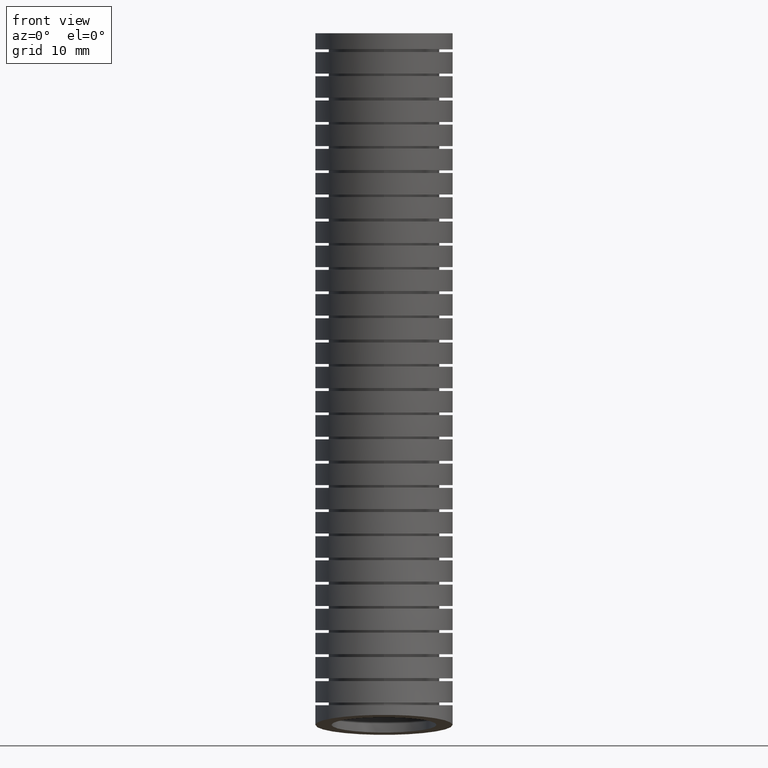
[diagram: clean part render]
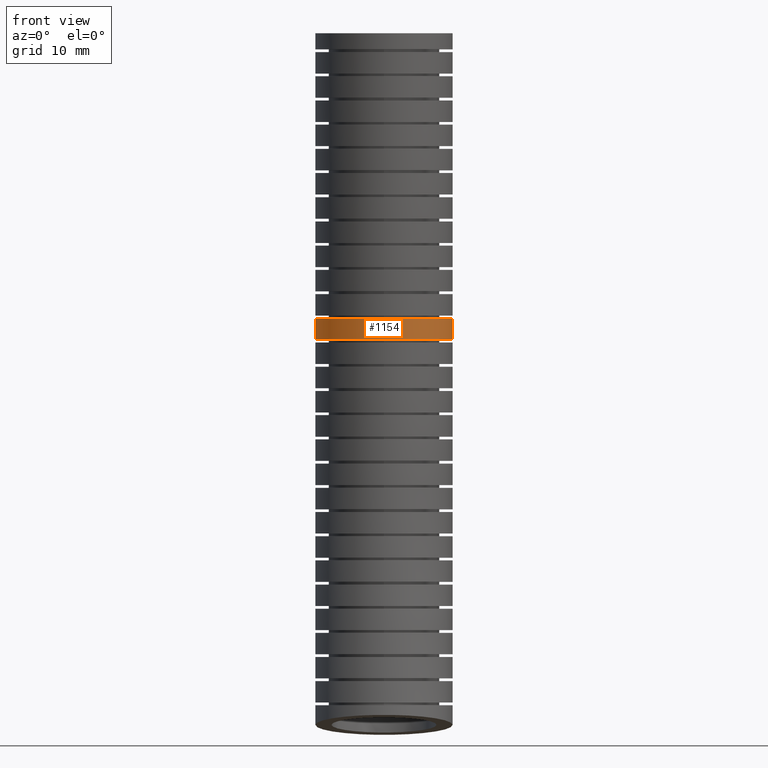
[diagram: same view with one face highlighted and labeled with its STEP entity id]
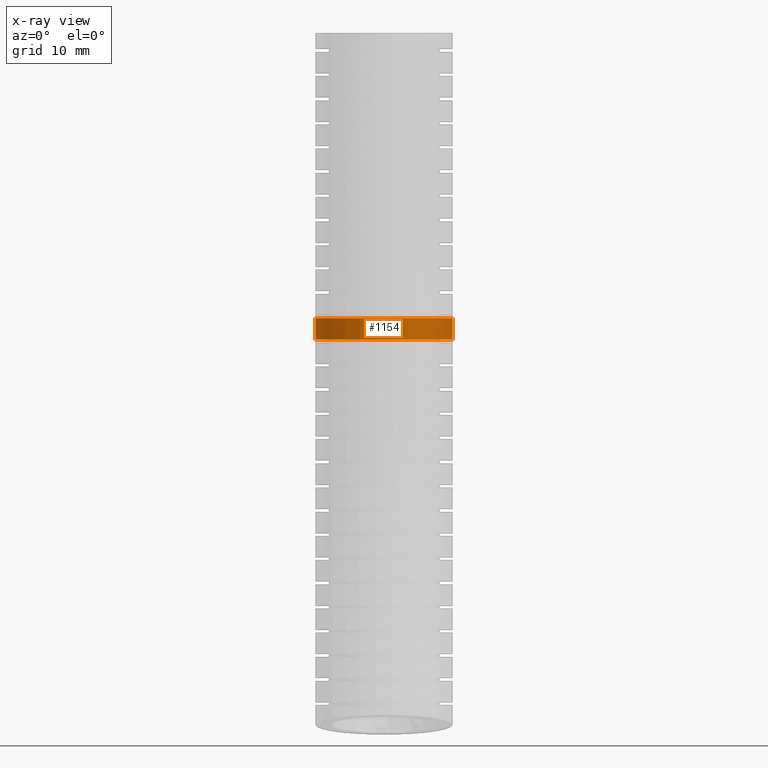
[diagram: x-ray of the same camera — body ghosted, the highlighted face saturated]
A machine part, front view. The second image highlights one B-rep face of the part: STEP entity #1154.
The next image is the same camera in x-ray: the body ghosted, the highlighted face saturated — about 0% of this face is hidden behind the body in this view.
In plain terms, the highlighted face is a freeform B-spline surface patch.
Its self-contained STEP definition (entity closure, byte-faithful):
#53 = EDGE_CURVE ( 'NONE', #1158, #1234, #2148, .T. ) ;
#342 = ORIENTED_EDGE ( 'NONE', *, *, #53, .F. ) ;
#1154 = ADVANCED_FACE ( 'NONE', ( #5274 ), #5361, .T. ) ;
#1155 = EDGE_LOOP ( 'NONE', ( #1156, #1160, #1163, #342 ) ) ;
#1156 = ORIENTED_EDGE ( 'NONE', *, *, #1157, .T. ) ;
#1157 = EDGE_CURVE ( 'NONE', #1158, #1159, #5359, .T. ) ;
#1158 = VERTEX_POINT ( 'NONE', #5319 ) ;
#1159 = VERTEX_POINT ( 'NONE', #5360 ) ;
#1160 = ORIENTED_EDGE ( 'NONE', *, *, #1161, .T. ) ;
#1161 = EDGE_CURVE ( 'NONE', #1159, #1162, #5293, .T. ) ;
#1162 = VERTEX_POINT ( 'NONE', #5292 ) ;
#1163 = ORIENTED_EDGE ( 'NONE', *, *, #1233, .T. ) ;
#1233 = EDGE_CURVE ( 'NONE', #1162, #1234, #5805, .T. ) ;
#1234 = VERTEX_POINT ( 'NONE', #5806 ) ;
#2140 = CARTESIAN_POINT ( 'NONE',  ( 0.2550000000000000600, 0.04051910040701137100, -1.139285206802340700 ) ) ;
#2141 = CARTESIAN_POINT ( 'NONE',  ( 0.2550000000000000600, 0.04022377987686701100, -1.112623963303655400 ) ) ;
#2142 = CARTESIAN_POINT ( 'NONE',  ( 0.2550000000000000600, 0.03985954388520000100, -1.085960048142794700 ) ) ;
#2143 = CARTESIAN_POINT ( 'NONE',  ( 0.2550000000000000000, 0.03943123525327440300, -1.059293649062639000 ) ) ;
#2148 = B_SPLINE_CURVE_WITH_KNOTS ( 'NONE', 3,
 ( #2143, #2142, #2141, #2140 ),
 .UNSPECIFIED., .F., .F.,
 ( 4, 4 ),
 ( 0.4113955442702315100, 0.4424901826397669700 ),
 .UNSPECIFIED. ) ;
#5274 = FACE_OUTER_BOUND ( 'NONE', #1155, .T. ) ;
#5288 = CARTESIAN_POINT ( 'NONE',  ( -0.2550000000000000600, 0.04051910041126190200, -1.139285206994206100 ) ) ;
#5289 = CARTESIAN_POINT ( 'NONE',  ( -0.2550000000000000600, 0.04022377987932290000, -1.112623963495526800 ) ) ;
#5290 = CARTESIAN_POINT ( 'NONE',  ( -0.2550000000000000600, 0.03985954388797444800, -1.085960048334648300 ) ) ;
#5291 = CARTESIAN_POINT ( 'NONE',  ( -0.2550000000000000600, 0.03943123525943528100, -1.059293649254424900 ) ) ;
#5292 = CARTESIAN_POINT ( 'NONE',  ( -0.2550000000000000600, 0.04051910041126190200, -1.139285206994206100 ) ) ;
#5293 = B_SPLINE_CURVE_WITH_KNOTS ( 'NONE', 3,
 ( #5291, #5290, #5289, #5288 ),
 .UNSPECIFIED., .F., .F.,
 ( 4, 4 ),
 ( 0.4113955443447953600, 0.4424901827143659600 ),
 .UNSPECIFIED. ) ;
#5319 = CARTESIAN_POINT ( 'NONE',  ( 0.2550000000000000000, 0.03943123525327440300, -1.059293649062639000 ) ) ;
#5320 = CARTESIAN_POINT ( 'NONE',  ( 0.2550000000000000000, -0.03000000000000002700, -2.569999999999999800 ) ) ;
#5321 = CARTESIAN_POINT ( 'NONE',  ( 0.2550000000000000000, -0.01126751581493337800, -2.380080086044865000 ) ) ;
#5322 = CARTESIAN_POINT ( 'NONE',  ( 0.2550000000000000000, 0.02578591590436005500, -2.004412636156899000 ) ) ;
#5323 = CARTESIAN_POINT ( 'NONE',  ( 0.2550000000000001700, 0.05488873695197821200, -1.148486533150796300 ) ) ;
#5324 = CARTESIAN_POINT ( 'NONE',  ( 0.2550000000000000000, 0.02298048079048191000, -0.4808413197099051800 ) ) ;
#5325 = CARTESIAN_POINT ( 'NONE',  ( 0.2550000000000000000, 0.0000000000000000000, 0.0000000000000000000 ) ) ;
#5326 = CARTESIAN_POINT ( 'NONE',  ( 0.2549999999999999500, 0.4745687628602173200, -2.644231822998695900 ) ) ;
#5327 = CARTESIAN_POINT ( 'NONE',  ( 0.2549999999999998900, 0.4942108475508936700, -2.446087519929936800 ) ) ;
#5328 = CARTESIAN_POINT ( 'NONE',  ( 0.2550000000000000000, 0.5330634971365140200, -2.054151974607116000 ) ) ;
#5329 = CARTESIAN_POINT ( 'NONE',  ( 0.2550000000000000000, 0.5652806686658973200, -1.166484199753219600 ) ) ;
#5330 = CARTESIAN_POINT ( 'NONE',  ( 0.2550000000000000000, 0.5331445723641462500, -0.4883764727230331400 ) ) ;
#5331 = CARTESIAN_POINT ( 'NONE',  ( 0.2550000000000000000, 0.5100000000000000100, 0.0000000000000000000 ) ) ;
#5332 = CARTESIAN_POINT ( 'NONE',  ( -0.2549999999999998900, 0.4745687628602173200, -2.644231822998695900 ) ) ;
#5333 = CARTESIAN_POINT ( 'NONE',  ( -0.2549999999999998400, 0.4942108475508936700, -2.446087519929936800 ) ) ;
#5334 = CARTESIAN_POINT ( 'NONE',  ( -0.2550000000000000000, 0.5330634971365140200, -2.054151974607116000 ) ) ;
#5335 = CARTESIAN_POINT ( 'NONE',  ( -0.2550000000000000000, 0.5652806686658973200, -1.166484199753219600 ) ) ;
#5336 = CARTESIAN_POINT ( 'NONE',  ( -0.2549999999999999500, 0.5331445723641462500, -0.4883764727230331400 ) ) ;
#5337 = CARTESIAN_POINT ( 'NONE',  ( -0.2549999999999999500, 0.5100000000000000100, 0.0000000000000000000 ) ) ;
#5356 = CARTESIAN_POINT ( 'NONE',  ( 0.2533231970305698800, 0.005794896162582858500, -1.059293649254424300 ) ) ;
#5357 = CARTESIAN_POINT ( 'NONE',  ( 0.2549999999999999500, 0.02259431509516705500, -1.059293649062638800 ) ) ;
#5358 = CARTESIAN_POINT ( 'NONE',  ( 0.2550000000000000000, 0.03943123525327440300, -1.059293649062639000 ) ) ;
#5359 = B_SPLINE_CURVE_WITH_KNOTS ( 'NONE', 3,
 ( #5358, #5357, #5356, #5440, #5439, #5438, #5437, #5436, #5435, #5434, #5433, #5432, #5431, #5430, #5429, #5428, #5427, #5426, #5425, #5424, #5423, #5422, #5421, #5420, #5419, #5418, #5417, #5416, #5415, #5414, #5413, #5412, #5411, #5410, #5409, #5408, #5407, #5406, #5405, #5404, #5403 ),
 .UNSPECIFIED., .F., .F.,
 ( 4, 2, 2, 2, 2, 2, 2, 2, 2, 2, 2, 2, 2, 2, 2, 1, 2, 2, 2, 2, 4 ),
 ( 0.0000000000000000000, 0.001278540503015179500, 0.002557081006030359000, 0.003835621509045538400, 0.005114162012060718100, 0.005753432263568308000, 0.006392702515075897800, 0.007671243018091076700, 0.008949783521106256500, 0.009589053772613846300, 0.01022832402412143600, 0.01150686452713661600, 0.01278540503015179600, 0.01406394553316697500, 0.01470321578467456500, 0.01534248603618215300, 0.01598175628768974300, 0.01662102653919733300, 0.01789956704221251300, 0.01917810754522769300, 0.02045664804824287200 ),
 .UNSPECIFIED. ) ;
#5360 = CARTESIAN_POINT ( 'NONE',  ( -0.2550000000000000600, 0.03943123525943528100, -1.059293649254424900 ) ) ;
#5361 =( BOUNDED_SURFACE ( )  B_SPLINE_SURFACE ( 3, 3, ( 
 ( #5402, #5401, #5400, #5399, #5398, #5397 ),
 ( #5396, #5395, #5394, #5393, #5392, #5391 ),
 ( #5390, #5389, #5388, #5387, #5386, #5385 ),
 ( #5384, #5383, #5382, #5381, #5380, #5379 ),
 ( #5337, #5336, #5335, #5334, #5333, #5332 ),
 ( #5331, #5330, #5329, #5328, #5327, #5326 ),
 ( #5325, #5324, #5323, #5322, #5321, #5320 ) ),
 .UNSPECIFIED., .F., .F., .T. ) 
 B_SPLINE_SURFACE_WITH_KNOTS ( ( 4, 3, 4 ),
 ( 4, 1, 1, 4 ),
 ( 0.0000000000000000000, 0.5000000000000000000, 1.000000000000000000 ),
 ( 0.0000000000000000000, 0.5599999999999998300, 0.7775565539011162200, 1.000000000000000000 ),
 .UNSPECIFIED. ) 
 GEOMETRIC_REPRESENTATION_ITEM ( )  RATIONAL_B_SPLINE_SURFACE ( (
 ( 1.000000000000000000, 1.000000000000000000, 0.9999999999999998900, 1.000000000000000000, 1.000000000000000000, 1.000000000000000000),
 ( 0.3333333333333333100, 0.3333333333333333100, 0.3333333333333332600, 0.3333333333333332600, 0.3333333333333333700, 0.3333333333333333100),
 ( 0.3333333333333333100, 0.3333333333333333100, 0.3333333333333332600, 0.3333333333333332600, 0.3333333333333333700, 0.3333333333333333100),
 ( 1.000000000000000000, 1.000000000000000000, 0.9999999999999998900, 1.000000000000000000, 1.000000000000000000, 1.000000000000000000),
 ( 0.3333333333333333100, 0.3333333333333333100, 0.3333333333333332600, 0.3333333333333332600, 0.3333333333333333700, 0.3333333333333333100),
 ( 0.3333333333333333100, 0.3333333333333333100, 0.3333333333333332600, 0.3333333333333332600, 0.3333333333333333700, 0.3333333333333333100),
 ( 1.000000000000000000, 1.000000000000000000, 0.9999999999999998900, 1.000000000000000000, 1.000000000000000000, 1.000000000000000000) ) ) 
 REPRESENTATION_ITEM ( '' )  SURFACE ( )  );
#5379 = CARTESIAN_POINT ( 'NONE',  ( -0.2550000000000000000, -0.02999999999999999500, -2.569999999999999800 ) ) ;
#5380 = CARTESIAN_POINT ( 'NONE',  ( -0.2550000000000000000, -0.01126751581493334900, -2.380080086044865000 ) ) ;
#5381 = CARTESIAN_POINT ( 'NONE',  ( -0.2550000000000000000, 0.02578591590436009300, -2.004412636156899000 ) ) ;
#5382 = CARTESIAN_POINT ( 'NONE',  ( -0.2550000000000001700, 0.05488873695197826800, -1.148486533150796300 ) ) ;
#5383 = CARTESIAN_POINT ( 'NONE',  ( -0.2550000000000000000, 0.02298048079048194800, -0.4808413197099051800 ) ) ;
#5384 = CARTESIAN_POINT ( 'NONE',  ( -0.2550000000000000000, 3.122849337825751200E-017, 0.0000000000000000000 ) ) ;
#5385 = CARTESIAN_POINT ( 'NONE',  ( -0.2550000000000000000, -0.5345687628602172600, -2.495768177001302000 ) ) ;
#5386 = CARTESIAN_POINT ( 'NONE',  ( -0.2549999999999999500, -0.5167458791807605400, -2.314072652159792300 ) ) ;
#5387 = CARTESIAN_POINT ( 'NONE',  ( -0.2550000000000001200, -0.4814916653277938100, -1.954673297706683400 ) ) ;
#5388 = CARTESIAN_POINT ( 'NONE',  ( -0.2550000000000001200, -0.4555031947619409000, -1.130488866548372800 ) ) ;
#5389 = CARTESIAN_POINT ( 'NONE',  ( -0.2550000000000000600, -0.4871836107831824000, -0.4733061666967772200 ) ) ;
#5390 = CARTESIAN_POINT ( 'NONE',  ( -0.2550000000000000600, -0.5100000000000000100, 0.0000000000000000000 ) ) ;
#5391 = CARTESIAN_POINT ( 'NONE',  ( 0.2549999999999999500, -0.5345687628602172600, -2.495768177001302000 ) ) ;
#5392 = CARTESIAN_POINT ( 'NONE',  ( 0.2549999999999998900, -0.5167458791807605400, -2.314072652159792300 ) ) ;
#5393 = CARTESIAN_POINT ( 'NONE',  ( 0.2550000000000000000, -0.4814916653277938100, -1.954673297706683400 ) ) ;
#5394 = CARTESIAN_POINT ( 'NONE',  ( 0.2550000000000000000, -0.4555031947619409000, -1.130488866548372800 ) ) ;
#5395 = CARTESIAN_POINT ( 'NONE',  ( 0.2550000000000000000, -0.4871836107831824000, -0.4733061666967772200 ) ) ;
#5396 = CARTESIAN_POINT ( 'NONE',  ( 0.2550000000000000000, -0.5100000000000000100, 0.0000000000000000000 ) ) ;
#5397 = CARTESIAN_POINT ( 'NONE',  ( 0.2550000000000000000, -0.03000000000000002700, -2.569999999999999800 ) ) ;
#5398 = CARTESIAN_POINT ( 'NONE',  ( 0.2550000000000000000, -0.01126751581493337800, -2.380080086044865000 ) ) ;
#5399 = CARTESIAN_POINT ( 'NONE',  ( 0.2550000000000000000, 0.02578591590436005500, -2.004412636156899000 ) ) ;
#5400 = CARTESIAN_POINT ( 'NONE',  ( 0.2550000000000001700, 0.05488873695197821200, -1.148486533150796300 ) ) ;
#5401 = CARTESIAN_POINT ( 'NONE',  ( 0.2550000000000000000, 0.02298048079048191000, -0.4808413197099051800 ) ) ;
#5402 = CARTESIAN_POINT ( 'NONE',  ( 0.2550000000000000000, 0.0000000000000000000, 0.0000000000000000000 ) ) ;
#5403 = CARTESIAN_POINT ( 'NONE',  ( -0.2550000000000000600, 0.03943123525943528100, -1.059293649254424900 ) ) ;
#5404 = CARTESIAN_POINT ( 'NONE',  ( -0.2550000000000000600, 0.02273679934529793500, -1.059293649254424700 ) ) ;
#5405 = CARTESIAN_POINT ( 'NONE',  ( -0.2533730616436006300, 0.006218271911818847000, -1.059293649254424000 ) ) ;
#5406 = CARTESIAN_POINT ( 'NONE',  ( -0.2468842000522564200, -0.02646900862429375400, -1.059293649254424300 ) ) ;
#5407 = CARTESIAN_POINT ( 'NONE',  ( -0.2419564086012829200, -0.04270004527580136000, -1.059293649254424900 ) ) ;
#5408 = CARTESIAN_POINT ( 'NONE',  ( -0.2292257166780676000, -0.07340583867163323600, -1.059293649254424700 ) ) ;
#5409 = CARTESIAN_POINT ( 'NONE',  ( -0.2214038879308409800, -0.08806354059971802100, -1.059293649254424300 ) ) ;
#5410 = CARTESIAN_POINT ( 'NONE',  ( -0.2074276951487280300, -0.1089792710377113500, -1.059293649254424300 ) ) ;
#5411 = CARTESIAN_POINT ( 'NONE',  ( -0.2024020567672960000, -0.1157474479196851500, -1.059293649254424700 ) ) ;
#5412 = CARTESIAN_POINT ( 'NONE',  ( -0.1918179747839011100, -0.1286300617273136400, -1.059293649254424700 ) ) ;
#5413 = CARTESIAN_POINT ( 'NONE',  ( -0.1806526929197404000, -0.1409342210356001300, -1.059293649254424000 ) ) ;
#5414 = CARTESIAN_POINT ( 'NONE',  ( -0.1683410770472716600, -0.1520974612095253300, -1.059293649254424500 ) ) ;
#5415 = CARTESIAN_POINT ( 'NONE',  ( -0.1554477257561072700, -0.1626817138758695200, -1.059293649254424300 ) ) ;
#5416 = CARTESIAN_POINT ( 'NONE',  ( -0.1486703320991409600, -0.1677095082561235500, -1.059293649254424900 ) ) ;
#5417 = CARTESIAN_POINT ( 'NONE',  ( -0.1277652766336997100, -0.1816682527304555600, -1.059293649254424900 ) ) ;
#5418 = CARTESIAN_POINT ( 'NONE',  ( -0.1131098989645655400, -0.1894868652540006000, -1.059293649254425600 ) ) ;
#5419 = CARTESIAN_POINT ( 'NONE',  ( -0.08239659426689546800, -0.2022216681272788800, -1.059293649254425400 ) ) ;
#5420 = CARTESIAN_POINT ( 'NONE',  ( -0.06616232601308431900, -0.2071534834215998700, -1.059293649254424900 ) ) ;
#5421 = CARTESIAN_POINT ( 'NONE',  ( -0.03349131998676090100, -0.2136562574134459900, -1.059293649254424900 ) ) ;
#5422 = CARTESIAN_POINT ( 'NONE',  ( -0.01697353750178483600, -0.2152973864898584900, -1.059293649254424700 ) ) ;
#5423 = CARTESIAN_POINT ( 'NONE',  ( 0.008078775466248924700, -0.2153240814420807900, -1.059293649254424900 ) ) ;
#5424 = CARTESIAN_POINT ( 'NONE',  ( 0.01651953401247357000, -0.2149175805271991400, -1.059293649254424900 ) ) ;
#5425 = CARTESIAN_POINT ( 'NONE',  ( 0.03317268920027512100, -0.2132888630937147300, -1.059293649254424900 ) ) ;
#5426 = CARTESIAN_POINT ( 'NONE',  ( 0.04140718695574591900, -0.2120712378769583100, -1.059293649254425400 ) ) ;
#5427 = CARTESIAN_POINT ( 'NONE',  ( 0.06584069422728551500, -0.2072359502126764100, -1.059293649254425400 ) ) ;
#5428 = CARTESIAN_POINT ( 'NONE',  ( 0.08177236735811303800, -0.2024474797984749700, -1.059293649254425200 ) ) ;
#5429 = CARTESIAN_POINT ( 'NONE',  ( 0.1128911496635884600, -0.1896096980979800300, -1.059293649254424900 ) ) ;
#5430 = CARTESIAN_POINT ( 'NONE',  ( 0.1275772336206182400, -0.1817649650723920900, -1.059293649254424700 ) ) ;
#5431 = CARTESIAN_POINT ( 'NONE',  ( 0.1483094545574877900, -0.1679644279328786900, -1.059293649254424700 ) ) ;
#5432 = CARTESIAN_POINT ( 'NONE',  ( 0.1550047905021148000, -0.1630218521035594900, -1.059293649254424700 ) ) ;
#5433 = CARTESIAN_POINT ( 'NONE',  ( 0.1679549363400194000, -0.1524364606848574700, -1.059293649254424700 ) ) ;
#5434 = CARTESIAN_POINT ( 'NONE',  ( 0.1742270292202120500, -0.1467706763645258200, -1.059293649254424700 ) ) ;
#5435 = CARTESIAN_POINT ( 'NONE',  ( 0.1919739060281820400, -0.1290748819466428800, -1.059293649254424500 ) ) ;
#5436 = CARTESIAN_POINT ( 'NONE',  ( 0.2025235185573504600, -0.1162577224107260200, -1.059293649254424700 ) ) ;
#5437 = CARTESIAN_POINT ( 'NONE',  ( 0.2210832171900184400, -0.08860237846393484400, -1.059293649254424500 ) ) ;
#5438 = CARTESIAN_POINT ( 'NONE',  ( 0.2291059839458280400, -0.07364927351942060500, -1.059293649254424900 ) ) ;
#5439 = CARTESIAN_POINT ( 'NONE',  ( 0.2418737528233392000, -0.04294404724299163300, -1.059293649254424700 ) ) ;
#5440 = CARTESIAN_POINT ( 'NONE',  ( 0.2467315833719421500, -0.02706022168021976800, -1.059293649254424000 ) ) ;
#5718 = CARTESIAN_POINT ( 'NONE',  ( -0.2291052479850598800, -0.07258519511304779800, -1.139285206994205400 ) ) ;
#5719 = CARTESIAN_POINT ( 'NONE',  ( -0.2420037891191959000, -0.04150937517680860400, -1.139285206994205700 ) ) ;
#5720 = CARTESIAN_POINT ( 'NONE',  ( -0.2468234361977103600, -0.02559029132689693800, -1.139285206994204800 ) ) ;
#5721 = CARTESIAN_POINT ( 'NONE',  ( -0.2517006371339901000, -0.001161462531630207800, -1.139285206994204500 ) ) ;
#5722 = CARTESIAN_POINT ( 'NONE',  ( -0.2529314312116676700, 0.007073857964126574800, -1.139285206994205700 ) ) ;
#5723 = CARTESIAN_POINT ( 'NONE',  ( -0.2545837475929568800, 0.02373379008068403000, -1.139285206994205400 ) ) ;
#5724 = CARTESIAN_POINT ( 'NONE',  ( -0.2550000000000000600, 0.03217168390744318300, -1.139285206994206100 ) ) ;
#5725 = CARTESIAN_POINT ( 'NONE',  ( -0.2550000000000000600, 0.04051910041126190200, -1.139285206994206100 ) ) ;
#5753 = CARTESIAN_POINT ( 'NONE',  ( 0.03328065314276863800, -0.2125888196849475800, -1.139285206994205400 ) ) ;
#5754 = CARTESIAN_POINT ( 'NONE',  ( 0.01659846631326115600, -0.2142116808881193200, -1.139285206994205900 ) ) ;
#5755 = CARTESIAN_POINT ( 'NONE',  ( -0.008299345304568068300, -0.2142116735960222500, -1.139285206994205900 ) ) ;
#5756 = CARTESIAN_POINT ( 'NONE',  ( -0.01660162317109719800, -0.2138079271356461400, -1.139285206994206100 ) ) ;
#5757 = CARTESIAN_POINT ( 'NONE',  ( -0.03321229406180898500, -0.2121794532623907900, -1.139285206994206300 ) ) ;
#5758 = CARTESIAN_POINT ( 'NONE',  ( -0.04156661675902180400, -0.2109439053024656500, -1.139285206994205400 ) ) ;
#5759 = CARTESIAN_POINT ( 'NONE',  ( -0.06620517044972305800, -0.2060450568390346000, -1.139285206994205900 ) ) ;
#5760 = CARTESIAN_POINT ( 'NONE',  ( -0.08209764625800847200, -0.2012208059654153600, -1.139285206994205700 ) ) ;
#5761 = CARTESIAN_POINT ( 'NONE',  ( -0.1128379196144504600, -0.1885192378667290000, -1.139285206994205700 ) ) ;
#5776 = CARTESIAN_POINT ( 'NONE',  ( 0.2073568491450066000, -0.1079766712371886800, -1.139285206994206300 ) ) ;
#5777 = CARTESIAN_POINT ( 'NONE',  ( 0.2023914199123597000, -0.1146662122786022700, -1.139285206994205400 ) ) ;
#5778 = CARTESIAN_POINT ( 'NONE',  ( 0.1917513899974707400, -0.1276098128667513300, -1.139285206994205400 ) ) ;
#5779 = CARTESIAN_POINT ( 'NONE',  ( 0.1860748285498402800, -0.1338567727875681600, -1.139285206994205400 ) ) ;
#5780 = CARTESIAN_POINT ( 'NONE',  ( 0.1683554210797803300, -0.1515290962799576700, -1.139285206994205400 ) ) ;
#5781 = CARTESIAN_POINT ( 'NONE',  ( 0.1555138736995587100, -0.1620448398952162300, -1.139285206994205400 ) ) ;
#5782 = CARTESIAN_POINT ( 'NONE',  ( 0.1277795038273558700, -0.1805520298437787700, -1.139285206994205200 ) ) ;
#5783 = CARTESIAN_POINT ( 'NONE',  ( 0.1128181409043830700, -0.1885279192187122900, -1.139285206994205200 ) ) ;
#5784 = CARTESIAN_POINT ( 'NONE',  ( 0.08210406973753309200, -0.2012176426374018600, -1.139285206994205200 ) ) ;
#5785 = CARTESIAN_POINT ( 'NONE',  ( 0.06620311209751914000, -0.2060480321691447500, -1.139285206994205200 ) ) ;
#5805 = B_SPLINE_CURVE_WITH_KNOTS ( 'NONE', 3,
 ( #5725, #5724, #5723, #5722, #5721, #5720, #5719, #5718, #5863, #5862, #5861, #5860, #5859, #5858, #5857, #5856, #5761, #5760, #5759, #5758, #5757, #5756, #5755, #5754, #5753, #5785, #5784, #5783, #5782, #5781, #5780, #5779, #5778, #5777, #5776, #5822, #5821, #5820, #5819, #5818, #5817, #5816 ),
 .UNSPECIFIED., .F., .F.,
 ( 4, 2, 2, 2, 2, 2, 2, 2, 2, 2, 2, 2, 2, 2, 2, 2, 2, 2, 2, 2, 4 ),
 ( 0.02045640501638763800, 0.02109569203198847400, 0.02173497904758931200, 0.02301355307879098700, 0.02429212710999266100, 0.02493141412559350000, 0.02557070114119433500, 0.02684927517239600900, 0.02812784920359768400, 0.02940642323479935500, 0.03004571025040019300, 0.03068499726600103200, 0.03196357129720270300, 0.03324214532840437400, 0.03452071935960605200, 0.03579929339080772900, 0.03643858040640855800, 0.03707786742200940000, 0.03835644145321107100, 0.03963501548441274200, 0.04091358951561441200 ),
 .UNSPECIFIED. ) ;
#5806 = CARTESIAN_POINT ( 'NONE',  ( 0.2550000000000000600, 0.04051910040701137100, -1.139285206802340700 ) ) ;
#5816 = CARTESIAN_POINT ( 'NONE',  ( 0.2550000000000000600, 0.04051910040701137100, -1.139285206802340700 ) ) ;
#5817 = CARTESIAN_POINT ( 'NONE',  ( 0.2550000000000001200, 0.02368173263825759300, -1.139285206802340700 ) ) ;
#5818 = CARTESIAN_POINT ( 'NONE',  ( 0.2533238706902981600, 0.006966180103019920500, -1.139285206994205700 ) ) ;
#5819 = CARTESIAN_POINT ( 'NONE',  ( 0.2468226702302187300, -0.02559134859433274600, -1.139285206994205900 ) ) ;
#5820 = CARTESIAN_POINT ( 'NONE',  ( 0.2419760087563923300, -0.04158729077422273400, -1.139285206994205700 ) ) ;
#5821 = CARTESIAN_POINT ( 'NONE',  ( 0.2290840032636135300, -0.07262535136847531000, -1.139285206994205900 ) ) ;
#5822 = CARTESIAN_POINT ( 'NONE',  ( 0.2212164544623180500, -0.08727145171178961300, -1.139285206994206300 ) ) ;
#5856 = CARTESIAN_POINT ( 'NONE',  ( -0.1278119510711306400, -0.1805316806293822100, -1.139285206994205900 ) ) ;
#5857 = CARTESIAN_POINT ( 'NONE',  ( -0.1555090549050943100, -0.1620467513003520700, -1.139285206994206100 ) ) ;
#5858 = CARTESIAN_POINT ( 'NONE',  ( -0.1683558789434091400, -0.1515312983227111700, -1.139285206994205400 ) ) ;
#5859 = CARTESIAN_POINT ( 'NONE',  ( -0.1861051108706217600, -0.1338252381575333300, -1.139285206994205400 ) ) ;
#5860 = CARTESIAN_POINT ( 'NONE',  ( -0.1917879569584062800, -0.1275673182223909800, -1.139285206994204500 ) ) ;
#5861 = CARTESIAN_POINT ( 'NONE',  ( -0.2024038491144408700, -0.1146490938706326300, -1.139285206994204800 ) ) ;
#5862 = CARTESIAN_POINT ( 'NONE',  ( -0.2073630045648149600, -0.1079678821130204300, -1.139285206994206300 ) ) ;
#5863 = CARTESIAN_POINT ( 'NONE',  ( -0.2212157291586186500, -0.08727172152084486400, -1.139285206994206300 ) ) ;